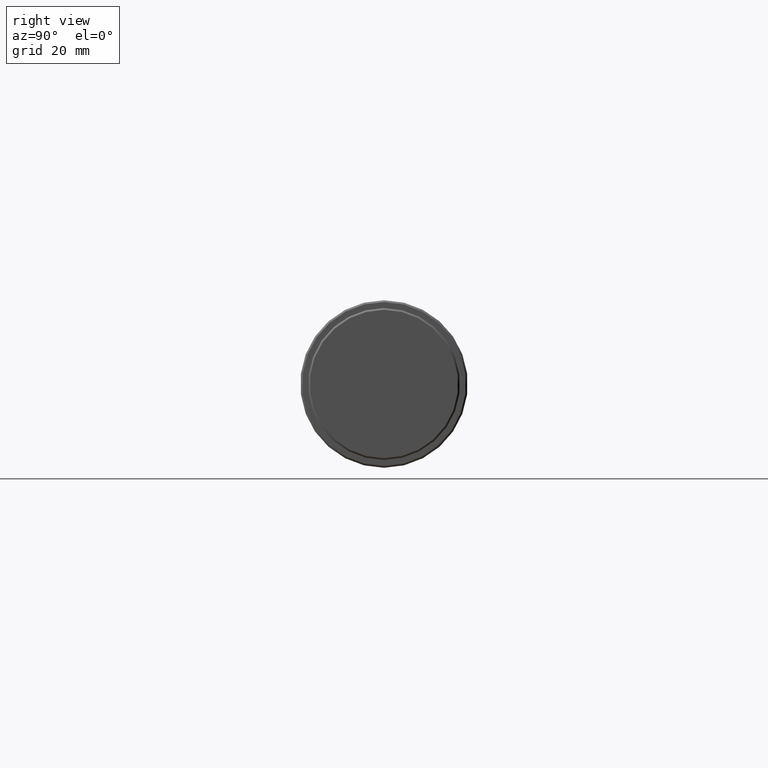
[diagram: clean part render]
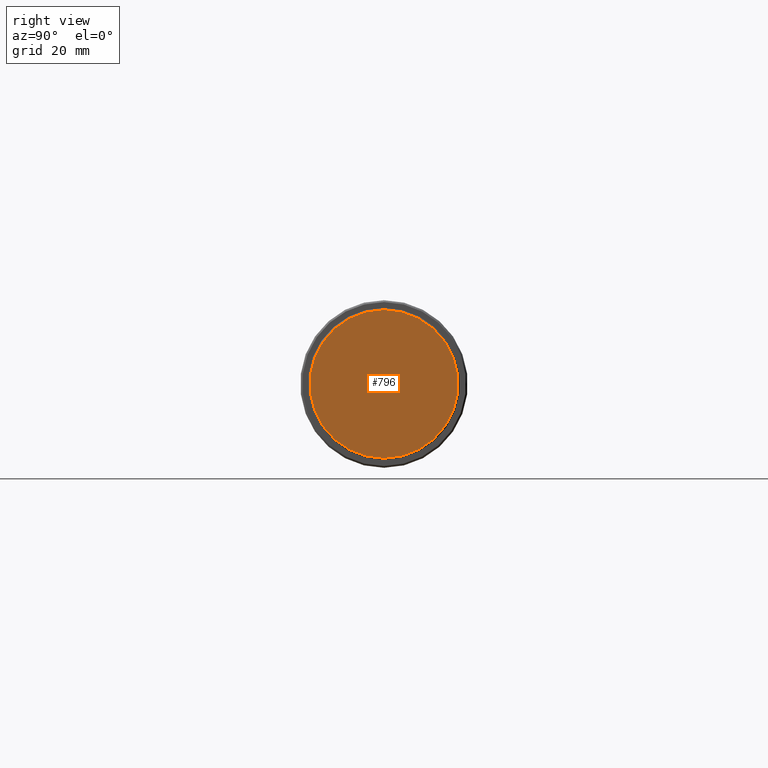
[diagram: same view with one face highlighted and labeled with its STEP entity id]
A machine part, right view. The second image highlights one B-rep face of the part: STEP entity #796.
In plain terms, the highlighted planar face has unit normal (-1, 0, -0).
Its self-contained STEP definition (entity closure, byte-faithful):
#82 = EDGE_LOOP ( 'NONE', ( #697, #568 ) ) ;
#126 = CARTESIAN_POINT ( 'NONE',  ( 115.7000000000000000, 12.40000000000000200, 0.0000000000000000000 ) ) ;
#135 = CARTESIAN_POINT ( 'NONE',  ( 115.7000000000000000, 0.0000000000000000000, 0.0000000000000000000 ) ) ;
#181 = CARTESIAN_POINT ( 'NONE',  ( 115.7000000000000000, 0.0000000000000000000, 12.40000000000000200 ) ) ;
#215 = VERTEX_POINT ( 'NONE', #181 ) ;
#242 = DIRECTION ( 'NONE',  ( -1.000000000000000000, -0.0000000000000000000, -0.0000000000000000000 ) ) ;
#250 = DIRECTION ( 'NONE',  ( 0.0000000000000000000, 0.0000000000000000000, 1.000000000000000000 ) ) ;
#254 = AXIS2_PLACEMENT_3D ( 'NONE', #135, #761, #455 ) ;
#257 = FACE_OUTER_BOUND ( 'NONE', #82, .T. ) ;
#288 = CIRCLE ( 'NONE', #254, 12.40000000000000200 ) ;
#321 = DIRECTION ( 'NONE',  ( -1.000000000000000000, 0.0000000000000000000, -0.0000000000000000000 ) ) ;
#376 = PLANE ( 'NONE',  #653 ) ;
#380 = DIRECTION ( 'NONE',  ( -0.0000000000000000000, 0.0000000000000000000, 1.000000000000000000 ) ) ;
#452 = CIRCLE ( 'NONE', #453, 12.40000000000000200 ) ;
#453 = AXIS2_PLACEMENT_3D ( 'NONE', #676, #242, #250 ) ;
#455 = DIRECTION ( 'NONE',  ( 0.0000000000000000000, 0.0000000000000000000, 1.000000000000000000 ) ) ;
#560 = CARTESIAN_POINT ( 'NONE',  ( 115.7000000000000000, 1.536931732929928400E-015, -12.40000000000000200 ) ) ;
#568 = ORIENTED_EDGE ( 'NONE', *, *, #632, .F. ) ;
#632 = EDGE_CURVE ( 'NONE', #665, #215, #452, .T. ) ;
#653 = AXIS2_PLACEMENT_3D ( 'NONE', #126, #321, #380 ) ;
#665 = VERTEX_POINT ( 'NONE', #560 ) ;
#676 = CARTESIAN_POINT ( 'NONE',  ( 115.7000000000000000, 0.0000000000000000000, 0.0000000000000000000 ) ) ;
#697 = ORIENTED_EDGE ( 'NONE', *, *, #819, .F. ) ;
#761 = DIRECTION ( 'NONE',  ( -1.000000000000000000, -0.0000000000000000000, -0.0000000000000000000 ) ) ;
#796 = ADVANCED_FACE ( 'NONE', ( #257 ), #376, .F. ) ;
#819 = EDGE_CURVE ( 'NONE', #215, #665, #288, .T. ) ;